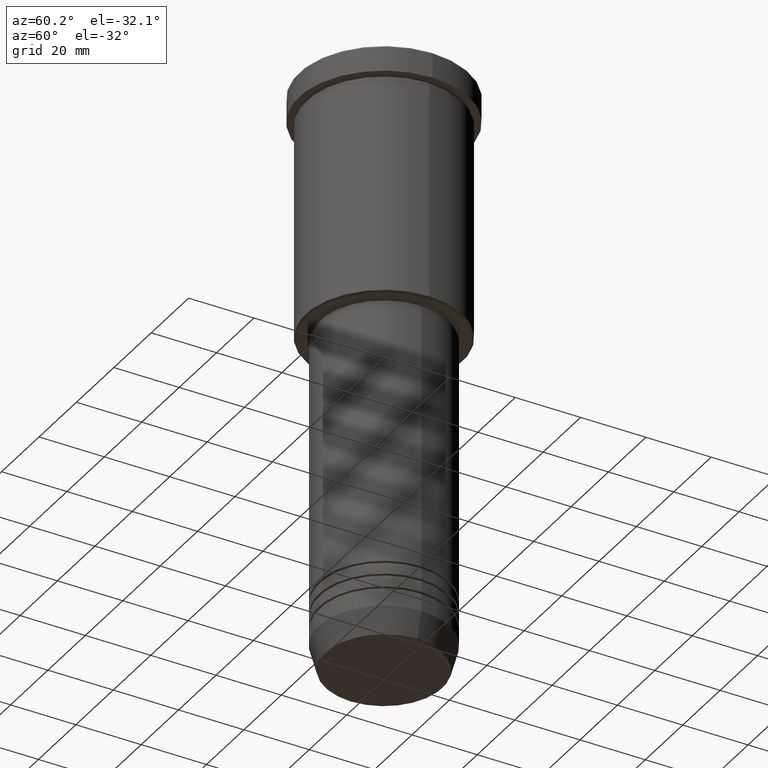
[diagram: clean part render]
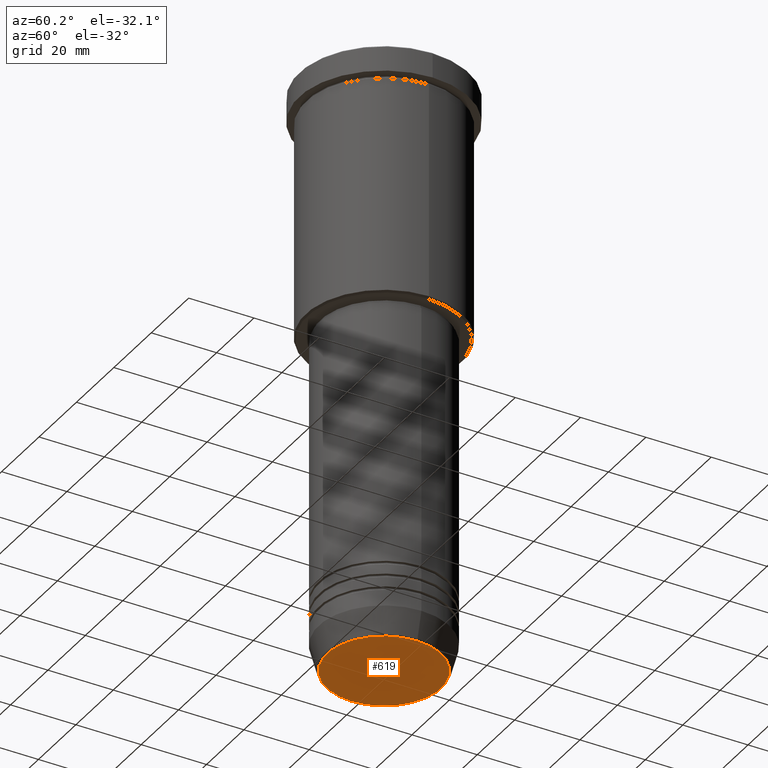
[diagram: same view with one face highlighted and labeled with its STEP entity id]
A machine part, auxiliary view. The second image highlights one B-rep face of the part: STEP entity #619.
In plain terms, the highlighted planar face has unit normal (0, -0, 1).
Its self-contained STEP definition (entity closure, byte-faithful):
#10 = DIRECTION ( 'NONE',  ( 1.000000000000000000, 0.000000000000000000, 0.000000000000000000 ) ) ;
#20 = CARTESIAN_POINT ( 'NONE',  ( 0.000000000000000000, 0.000000000000000000, -180.0000000000000000 ) ) ;
#28 = EDGE_CURVE ( 'NONE', #286, #312, #1181, .T. ) ;
#35 = AXIS2_PLACEMENT_3D ( 'NONE', #1107, #190, #270 ) ;
#36 = EDGE_CURVE ( 'NONE', #312, #286, #984, .T. ) ;
#168 = ORIENTED_EDGE ( 'NONE', *, *, #36, .T. ) ;
#190 = DIRECTION ( 'NONE',  ( 0.000000000000000000, 0.000000000000000000, -1.000000000000000000 ) ) ;
#201 = EDGE_LOOP ( 'NONE', ( #1064, #168 ) ) ;
#250 = CARTESIAN_POINT ( 'NONE',  ( 17.47274296656154036, 0.000000000000000000, -180.0000000000000000 ) ) ;
#270 = DIRECTION ( 'NONE',  ( 1.000000000000000000, 0.000000000000000000, 0.000000000000000000 ) ) ;
#284 = DIRECTION ( 'NONE',  ( 1.000000000000000000, 0.000000000000000000, 0.000000000000000000 ) ) ;
#286 = VERTEX_POINT ( 'NONE', #250 ) ;
#312 = VERTEX_POINT ( 'NONE', #600 ) ;
#443 = DIRECTION ( 'NONE',  ( 0.000000000000000000, -0.000000000000000000, 1.000000000000000000 ) ) ;
#600 = CARTESIAN_POINT ( 'NONE',  ( -17.47274296656154036, 2.169366823916868503E-15, -180.0000000000000000 ) ) ;
#612 = AXIS2_PLACEMENT_3D ( 'NONE', #920, #443, #10 ) ;
#619 = ADVANCED_FACE ( 'NONE', ( #915 ), #711, .F. ) ;
#698 = AXIS2_PLACEMENT_3D ( 'NONE', #20, #824, #284 ) ;
#711 = PLANE ( 'NONE',  #612 ) ;
#824 = DIRECTION ( 'NONE',  ( 0.000000000000000000, 0.000000000000000000, -1.000000000000000000 ) ) ;
#915 = FACE_OUTER_BOUND ( 'NONE', #201, .T. ) ;
#920 = CARTESIAN_POINT ( 'NONE',  ( 0.000000000000000000, 0.000000000000000000, -180.0000000000000000 ) ) ;
#984 = CIRCLE ( 'NONE', #698, 17.47274296656154036 ) ;
#1064 = ORIENTED_EDGE ( 'NONE', *, *, #28, .T. ) ;
#1107 = CARTESIAN_POINT ( 'NONE',  ( 0.000000000000000000, 0.000000000000000000, -180.0000000000000000 ) ) ;
#1181 = CIRCLE ( 'NONE', #35, 17.47274296656154036 ) ;